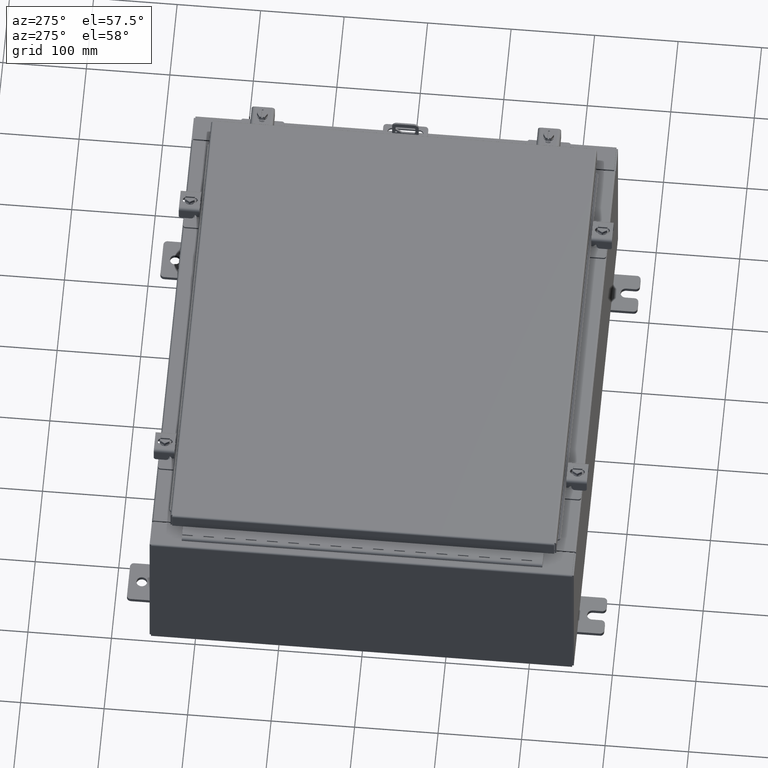
[diagram: clean part render]
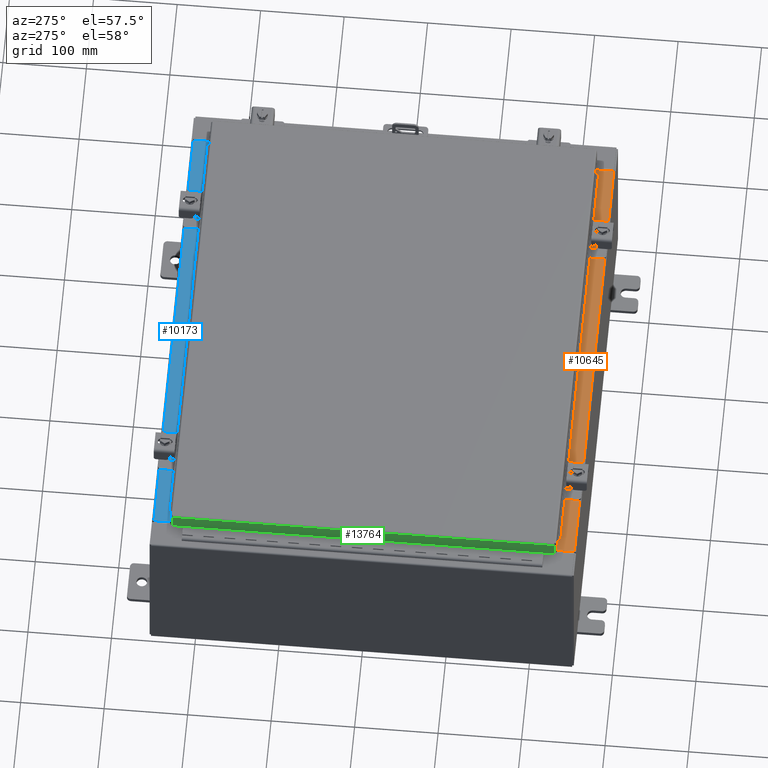
[diagram: same view with three faces highlighted in distinct colors, each labeled with its STEP entity id]
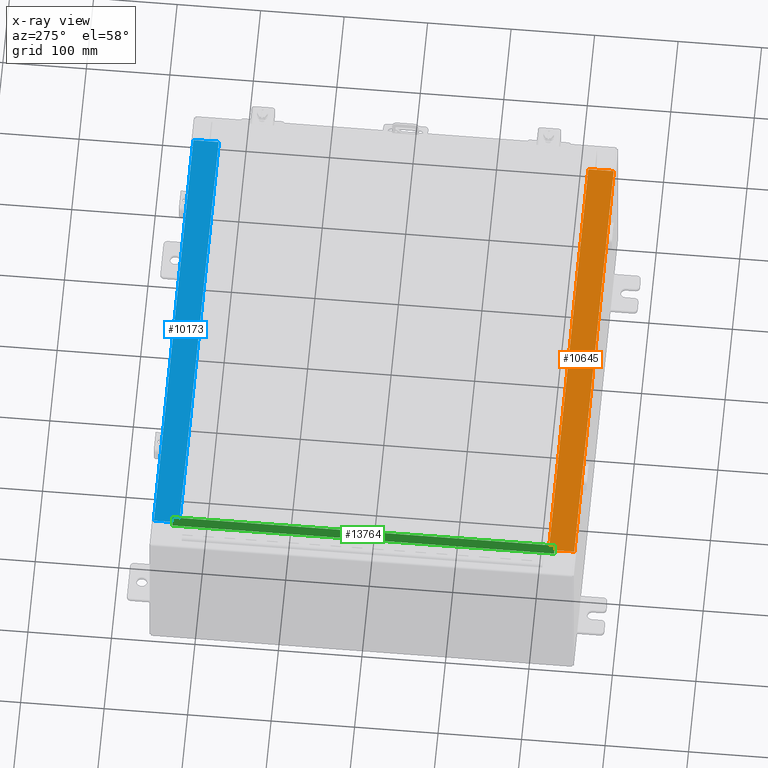
[diagram: x-ray of the same camera — body ghosted, the three highlighted faces saturated]
A machine part, auxiliary view with three faces highlighted in distinct colors.
The next image is the same camera in x-ray (body ghosted, the three faces saturated) — at least one of them is partly hidden behind the body in this view.
Their STEP definitions:

[orange] entity #10645 — the highlighted planar face has unit normal (-0, -0, 1).
#697 = VERTEX_POINT ( 'NONE', #22139 ) ;
#1626 = CARTESIAN_POINT ( 'NONE',  ( -2.252313287748606700E-018, -0.08770000000000000000, 4.000000000000000900 ) ) ;
#1630 = DIRECTION ( 'NONE',  ( -0.0000000000000000000, 1.000000000000000000, -3.566381192773190000E-015 ) ) ;
#1985 = FACE_OUTER_BOUND ( 'NONE', #23585, .T. ) ;
#4103 = ORIENTED_EDGE ( 'NONE', *, *, #7986, .F. ) ;
#4200 = VECTOR ( 'NONE', #10680, 39.37007874015748100 ) ;
#4959 = EDGE_CURVE ( 'NONE', #13753, #697, #15608, .T. ) ;
#5142 = LINE ( 'NONE', #12146, #16563 ) ;
#5913 = LINE ( 'NONE', #10686, #29429 ) ;
#6775 = EDGE_CURVE ( 'NONE', #9286, #697, #5913, .T. ) ;
#7308 = ORIENTED_EDGE ( 'NONE', *, *, #4959, .T. ) ;
#7521 = CARTESIAN_POINT ( 'NONE',  ( 10.63720000000000400, -0.08769999999999965300, 4.000000000000000000 ) ) ;
#7986 = EDGE_CURVE ( 'NONE', #23751, #9286, #11754, .T. ) ;
#8514 = CARTESIAN_POINT ( 'NONE',  ( 10.63720000000000200, -1.287299999999999900, 4.000000000000004400 ) ) ;
#9286 = VERTEX_POINT ( 'NONE', #27356 ) ;
#9674 = PLANE ( 'NONE',  #23160 ) ;
#10645 = ADVANCED_FACE ( 'NONE', ( #1985 ), #9674, .T. ) ;
#10680 = DIRECTION ( 'NONE',  ( -1.000000000000000000, 2.568202152506545800E-017, -9.159187855938968600E-032 ) ) ;
#10686 = CARTESIAN_POINT ( 'NONE',  ( -10.63720000000000200, -0.07469999999999973900, 4.000000000000000000 ) ) ;
#11225 = EDGE_CURVE ( 'NONE', #13753, #23751, #5142, .T. ) ;
#11754 = LINE ( 'NONE', #13214, #12486 ) ;
#11947 = DIRECTION ( 'NONE',  ( 0.0000000000000000000, 3.566381192773190000E-015, 1.000000000000000000 ) ) ;
#12146 = CARTESIAN_POINT ( 'NONE',  ( 10.63720000000000200, -1.300299999999999800, 4.000000000000004400 ) ) ;
#12486 = VECTOR ( 'NONE', #15498, 39.37007874015748100 ) ;
#13214 = CARTESIAN_POINT ( 'NONE',  ( 10.63720000000000400, -1.287299999999999900, 4.000000000000003600 ) ) ;
#13753 = VERTEX_POINT ( 'NONE', #7521 ) ;
#15498 = DIRECTION ( 'NONE',  ( -1.000000000000000000, 0.0000000000000000000, 0.0000000000000000000 ) ) ;
#15608 = LINE ( 'NONE', #1626, #4200 ) ;
#16563 = VECTOR ( 'NONE', #19007, 39.37007874015748100 ) ;
#19001 = ORIENTED_EDGE ( 'NONE', *, *, #11225, .F. ) ;
#19007 = DIRECTION ( 'NONE',  ( -0.0000000000000000000, -1.000000000000000000, 3.566381192773190000E-015 ) ) ;
#22139 = CARTESIAN_POINT ( 'NONE',  ( -10.63720000000000200, -0.08770000000000000000, 4.000000000000000000 ) ) ;
#23160 = AXIS2_PLACEMENT_3D ( 'NONE', #25586, #11947, #27891 ) ;
#23585 = EDGE_LOOP ( 'NONE', ( #26916, #4103, #19001, #7308 ) ) ;
#23751 = VERTEX_POINT ( 'NONE', #8514 ) ;
#25586 = CARTESIAN_POINT ( 'NONE',  ( 0.0000000000000000000, 1.425992975200418500E-014, 4.000000000000000000 ) ) ;
#26916 = ORIENTED_EDGE ( 'NONE', *, *, #6775, .F. ) ;
#27356 = CARTESIAN_POINT ( 'NONE',  ( -10.63720000000000200, -1.287299999999999200, 4.000000000000004400 ) ) ;
#27891 = DIRECTION ( 'NONE',  ( 0.0000000000000000000, -1.000000000000000000, 3.566381192773190000E-015 ) ) ;
#29429 = VECTOR ( 'NONE', #1630, 39.37007874015748100 ) ;

[blue] entity #10173 — the highlighted planar face has unit normal (0, 0, 1).
#1102 = CARTESIAN_POINT ( 'NONE',  ( 10.63720000000000400, -1.287299999999999900, 4.000000000000003600 ) ) ;
#2081 = ORIENTED_EDGE ( 'NONE', *, *, #3693, .F. ) ;
#2264 = CARTESIAN_POINT ( 'NONE',  ( -10.63720000000000200, -0.07469999999999973900, 4.000000000000000000 ) ) ;
#3693 = EDGE_CURVE ( 'NONE', #7086, #19510, #16053, .T. ) ;
#3879 = AXIS2_PLACEMENT_3D ( 'NONE', #7925, #26218, #12583 ) ;
#4568 = VECTOR ( 'NONE', #18176, 39.37007874015748100 ) ;
#7086 = VERTEX_POINT ( 'NONE', #7090 ) ;
#7090 = CARTESIAN_POINT ( 'NONE',  ( 10.63720000000000400, -0.08769999999999965300, 4.000000000000000000 ) ) ;
#7896 = CARTESIAN_POINT ( 'NONE',  ( 10.63720000000000200, -1.300299999999999800, 4.000000000000004400 ) ) ;
#7925 = CARTESIAN_POINT ( 'NONE',  ( 0.0000000000000000000, 1.425992975200418500E-014, 4.000000000000000000 ) ) ;
#8080 = FACE_OUTER_BOUND ( 'NONE', #10497, .T. ) ;
#9809 = ORIENTED_EDGE ( 'NONE', *, *, #19937, .T. ) ;
#10039 = CARTESIAN_POINT ( 'NONE',  ( -2.252313287748606700E-018, -0.08770000000000000000, 4.000000000000000900 ) ) ;
#10173 = ADVANCED_FACE ( 'NONE', ( #8080 ), #23927, .T. ) ;
#10497 = EDGE_LOOP ( 'NONE', ( #17473, #22056, #2081, #9809 ) ) ;
#12583 = DIRECTION ( 'NONE',  ( 0.0000000000000000000, -1.000000000000000000, 3.566381192773190000E-015 ) ) ;
#12770 = LINE ( 'NONE', #2264, #4568 ) ;
#13533 = VERTEX_POINT ( 'NONE', #19884 ) ;
#14903 = VERTEX_POINT ( 'NONE', #17748 ) ;
#15182 = VECTOR ( 'NONE', #21387, 39.37007874015748100 ) ;
#16053 = LINE ( 'NONE', #7896, #27436 ) ;
#17473 = ORIENTED_EDGE ( 'NONE', *, *, #22168, .F. ) ;
#17748 = CARTESIAN_POINT ( 'NONE',  ( -10.63720000000000200, -1.287299999999999200, 4.000000000000004400 ) ) ;
#18176 = DIRECTION ( 'NONE',  ( -0.0000000000000000000, 1.000000000000000000, -3.566381192773190000E-015 ) ) ;
#18487 = VECTOR ( 'NONE', #26072, 39.37007874015748100 ) ;
#19510 = VERTEX_POINT ( 'NONE', #25698 ) ;
#19884 = CARTESIAN_POINT ( 'NONE',  ( -10.63720000000000200, -0.08770000000000000000, 4.000000000000000000 ) ) ;
#19937 = EDGE_CURVE ( 'NONE', #7086, #13533, #27292, .T. ) ;
#21387 = DIRECTION ( 'NONE',  ( -1.000000000000000000, 2.568202152506545800E-017, -9.159187855938968600E-032 ) ) ;
#21827 = EDGE_CURVE ( 'NONE', #19510, #14903, #24527, .T. ) ;
#22056 = ORIENTED_EDGE ( 'NONE', *, *, #21827, .F. ) ;
#22168 = EDGE_CURVE ( 'NONE', #14903, #13533, #12770, .T. ) ;
#23927 = PLANE ( 'NONE',  #3879 ) ;
#24527 = LINE ( 'NONE', #1102, #18487 ) ;
#25698 = CARTESIAN_POINT ( 'NONE',  ( 10.63720000000000200, -1.287299999999999900, 4.000000000000004400 ) ) ;
#25998 = DIRECTION ( 'NONE',  ( -0.0000000000000000000, -1.000000000000000000, 3.566381192773190000E-015 ) ) ;
#26072 = DIRECTION ( 'NONE',  ( -1.000000000000000000, 0.0000000000000000000, 0.0000000000000000000 ) ) ;
#26218 = DIRECTION ( 'NONE',  ( 0.0000000000000000000, 3.566381192773190000E-015, 1.000000000000000000 ) ) ;
#27292 = LINE ( 'NONE', #10039, #15182 ) ;
#27436 = VECTOR ( 'NONE', #25998, 39.37007874015748100 ) ;

[green] entity #13764 — the highlighted planar face has unit normal (1, 0, -0).
#758 = CARTESIAN_POINT ( 'NONE',  ( -11.07799999999999900, -4.038834297027417500E-030, 3.387282206785410600E-014 ) ) ;
#1407 = DIRECTION ( 'NONE',  ( 4.379057701015054300E-047, 1.000000000000000000, 1.201604571657912400E-016 ) ) ;
#2402 = ORIENTED_EDGE ( 'NONE', *, *, #10430, .F. ) ;
#3041 = DIRECTION ( 'NONE',  ( 1.000000000000000000, 3.645815397208356400E-031, -3.034122441942816500E-015 ) ) ;
#4551 = LINE ( 'NONE', #25462, #5955 ) ;
#4710 = CARTESIAN_POINT ( 'NONE',  ( -11.07800000000000300, -9.005157864376261800, -0.7949999999999996000 ) ) ;
#4958 = DIRECTION ( 'NONE',  ( -3.034122441942816500E-015, 6.982962677686267500E-015, -1.000000000000000000 ) ) ;
#5014 = FACE_OUTER_BOUND ( 'NONE', #11177, .T. ) ;
#5309 = VECTOR ( 'NONE', #4958, 39.37007874015748100 ) ;
#5955 = VECTOR ( 'NONE', #11828, 39.37007874015748100 ) ;
#6567 = VERTEX_POINT ( 'NONE', #7722 ) ;
#6637 = CARTESIAN_POINT ( 'NONE',  ( -11.07799999999999900, 9.005157864376270600, -0.08770000000000004200 ) ) ;
#7071 = ORIENTED_EDGE ( 'NONE', *, *, #9354, .T. ) ;
#7722 = CARTESIAN_POINT ( 'NONE',  ( -11.07799999999999900, -9.005157864376268900, -0.08770000000000007000 ) ) ;
#8990 = DIRECTION ( 'NONE',  ( 3.645815397208356400E-031, -1.000000000000000000, -1.074717912135910100E-045 ) ) ;
#8993 = EDGE_CURVE ( 'NONE', #23986, #24117, #19188, .T. ) ;
#9354 = EDGE_CURVE ( 'NONE', #11088, #24117, #4551, .T. ) ;
#9802 = PLANE ( 'NONE',  #15226 ) ;
#10430 = EDGE_CURVE ( 'NONE', #11088, #6567, #13742, .T. ) ;
#10453 = CARTESIAN_POINT ( 'NONE',  ( -11.07800000000000300, -9.093999999999999400, -0.7949999999999997100 ) ) ;
#11088 = VERTEX_POINT ( 'NONE', #6637 ) ;
#11177 = EDGE_LOOP ( 'NONE', ( #2402, #7071, #21442, #23785 ) ) ;
#11828 = DIRECTION ( 'NONE',  ( -3.034122441942816500E-015, 6.982962677686267500E-015, -1.000000000000000000 ) ) ;
#13742 = LINE ( 'NONE', #22587, #25869 ) ;
#13764 = ADVANCED_FACE ( 'NONE', ( #5014 ), #9802, .F. ) ;
#15226 = AXIS2_PLACEMENT_3D ( 'NONE', #758, #3041, #18973 ) ;
#16328 = CARTESIAN_POINT ( 'NONE',  ( -11.07799999999999900, -9.005157864376267100, -0.07469999999999976700 ) ) ;
#17433 = LINE ( 'NONE', #16328, #5309 ) ;
#17745 = VECTOR ( 'NONE', #1407, 39.37007874015748100 ) ;
#18973 = DIRECTION ( 'NONE',  ( -3.034122441942816500E-015, 0.0000000000000000000, -1.000000000000000000 ) ) ;
#19188 = LINE ( 'NONE', #10453, #17745 ) ;
#21442 = ORIENTED_EDGE ( 'NONE', *, *, #8993, .F. ) ;
#21654 = EDGE_CURVE ( 'NONE', #6567, #23986, #17433, .T. ) ;
#22587 = CARTESIAN_POINT ( 'NONE',  ( -11.07799999999999900, -9.093999999999999400, -0.08770000000000004200 ) ) ;
#23785 = ORIENTED_EDGE ( 'NONE', *, *, #21654, .F. ) ;
#23986 = VERTEX_POINT ( 'NONE', #4710 ) ;
#24117 = VERTEX_POINT ( 'NONE', #25716 ) ;
#25462 = CARTESIAN_POINT ( 'NONE',  ( -11.07799999999999900, 9.005157864376268900, 9.675550334146656300E-014 ) ) ;
#25716 = CARTESIAN_POINT ( 'NONE',  ( -11.07800000000000300, 9.005157864376274200, -0.7949999999999974900 ) ) ;
#25869 = VECTOR ( 'NONE', #8990, 39.37007874015748100 ) ;